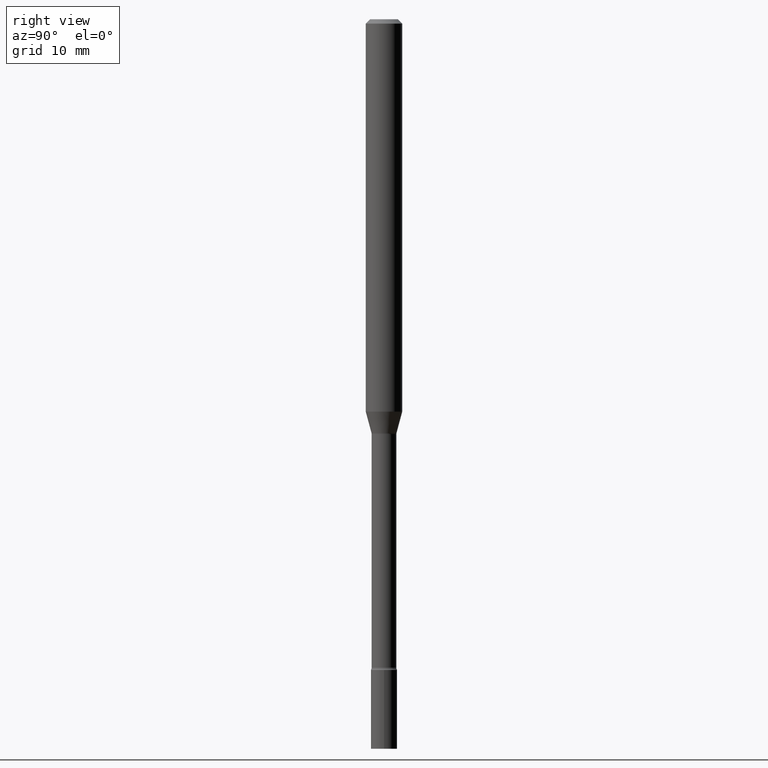
[diagram: clean part render]
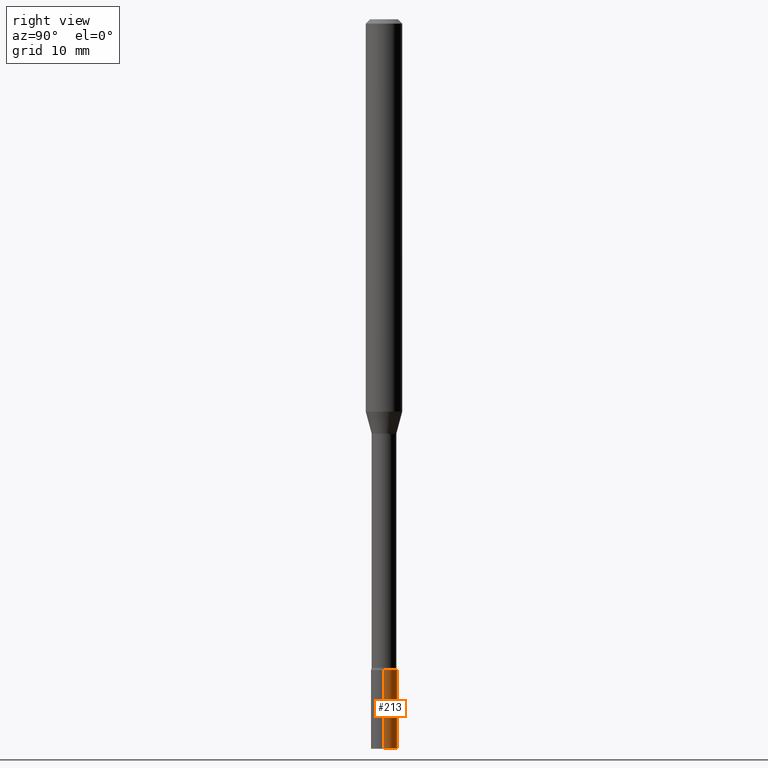
[diagram: same view with one face highlighted and labeled with its STEP entity id]
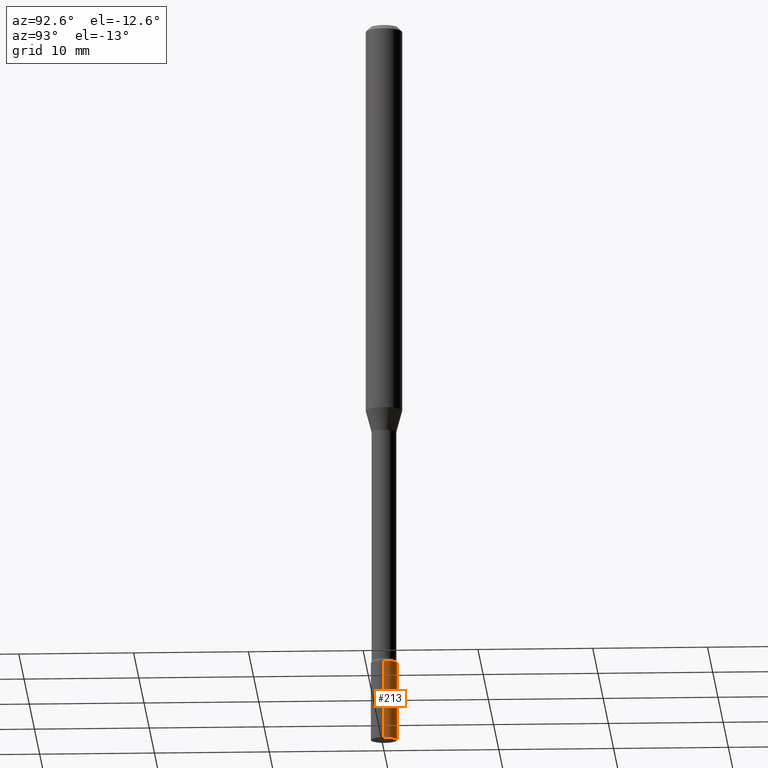
[diagram: same view with one face highlighted and labeled with its STEP entity id]
A machine part, right view. The second image highlights one B-rep face of the part: STEP entity #213.
A second angle (auxiliary view) of the same face is appended — the face is thin or edge-on in the first view.
In plain terms, the highlighted cylindrical surface (edge-blend (fillet) strip) has radius 1.143 mm, axis along (-0, 0, 1).
Its self-contained STEP definition (entity closure, byte-faithful):
#12 = DIRECTION ( 'NONE',  ( 1.000000000000000000, -6.982962677686266711E-15, 4.876176775795935793E-29 ) ) ;
#23 = EDGE_CURVE ( 'NONE', #290, #363, #511, .T. ) ;
#33 = CARTESIAN_POINT ( 'NONE',  ( -0.04499999999999999833, -7.937609135271993890E-15, -2.500000000000000000 ) ) ;
#67 = ORIENTED_EDGE ( 'NONE', *, *, #271, .T. ) ;
#77 = DIRECTION ( 'NONE',  ( -2.445468806185136877E-29, 3.491481338843145188E-15, 1.000000000000000000 ) ) ;
#80 = CARTESIAN_POINT ( 'NONE',  ( 0.04499999999999999833, -8.100236706116096837E-15, -2.229999999999999982 ) ) ;
#120 = AXIS2_PLACEMENT_3D ( 'NONE', #399, #325, #476 ) ;
#143 = VECTOR ( 'NONE', #241, 39.37007874015748143 ) ;
#165 = CARTESIAN_POINT ( 'NONE',  ( -0.04499999999999999833, -7.937609135271993890E-15, -2.229999999999999982 ) ) ;
#167 = LINE ( 'NONE', #337, #306 ) ;
#194 = FACE_OUTER_BOUND ( 'NONE', #326, .T. ) ;
#201 = DIRECTION ( 'NONE',  ( 1.000000000000000000, -6.982962677686246989E-15, 0.000000000000000000 ) ) ;
#209 = VERTEX_POINT ( 'NONE', #33 ) ;
#213 = ADVANCED_FACE ( 'NONE', ( #194 ), #360, .T. ) ;
#220 = EDGE_CURVE ( 'NONE', #209, #477, #167, .T. ) ;
#237 = CARTESIAN_POINT ( 'NONE',  ( 0.04499999999999999833, -9.042936667603745051E-15, -2.500000000000000000 ) ) ;
#241 = DIRECTION ( 'NONE',  ( -2.445468806185136877E-29, 3.491481338843145188E-15, 1.000000000000000000 ) ) ;
#245 = CIRCLE ( 'NONE', #120, 0.04499999999999999833 ) ;
#261 = DIRECTION ( 'NONE',  ( -2.445468806185136597E-29, 3.491481338843145583E-15, 1.000000000000000000 ) ) ;
#271 = EDGE_CURVE ( 'NONE', #290, #209, #330, .T. ) ;
#288 = ORIENTED_EDGE ( 'NONE', *, *, #220, .T. ) ;
#290 = VERTEX_POINT ( 'NONE', #237 ) ;
#302 = CARTESIAN_POINT ( 'NONE',  ( 0.000000000000000000, 0.000000000000000000, 0.000000000000000000 ) ) ;
#306 = VECTOR ( 'NONE', #77, 39.37007874015748143 ) ;
#325 = DIRECTION ( 'NONE',  ( -2.445468806185136597E-29, 3.491481338843145583E-15, 1.000000000000000000 ) ) ;
#326 = EDGE_LOOP ( 'NONE', ( #67, #288, #448, #352 ) ) ;
#330 = CIRCLE ( 'NONE', #514, 0.04499999999999999833 ) ;
#336 = AXIS2_PLACEMENT_3D ( 'NONE', #302, #261, #12 ) ;
#337 = CARTESIAN_POINT ( 'NONE',  ( -0.04499999999999999833, 3.197442310920450718E-16, -2.213520790614707560E-30 ) ) ;
#352 = ORIENTED_EDGE ( 'NONE', *, *, #23, .F. ) ;
#360 = CYLINDRICAL_SURFACE ( 'NONE', #336, 0.04499999999999999833 ) ;
#363 = VERTEX_POINT ( 'NONE', #80 ) ;
#399 = CARTESIAN_POINT ( 'NONE',  ( 5.453395437792854252E-29, -7.786003385620215150E-15, -2.229999999999999982 ) ) ;
#416 = EDGE_CURVE ( 'NONE', #363, #477, #245, .T. ) ;
#448 = ORIENTED_EDGE ( 'NONE', *, *, #416, .F. ) ;
#466 = DIRECTION ( 'NONE',  ( -2.445468806185136597E-29, 3.491481338843145583E-15, 1.000000000000000000 ) ) ;
#476 = DIRECTION ( 'NONE',  ( 1.000000000000000000, -6.982962677686269077E-15, 0.000000000000000000 ) ) ;
#477 = VERTEX_POINT ( 'NONE', #165 ) ;
#500 = CARTESIAN_POINT ( 'NONE',  ( 6.113672015462842613E-29, -8.728703347107864943E-15, -2.500000000000000000 ) ) ;
#509 = CARTESIAN_POINT ( 'NONE',  ( 0.04499999999999999833, -3.142333204958819823E-16, 2.194279549108170967E-30 ) ) ;
#511 = LINE ( 'NONE', #509, #143 ) ;
#514 = AXIS2_PLACEMENT_3D ( 'NONE', #500, #466, #201 ) ;